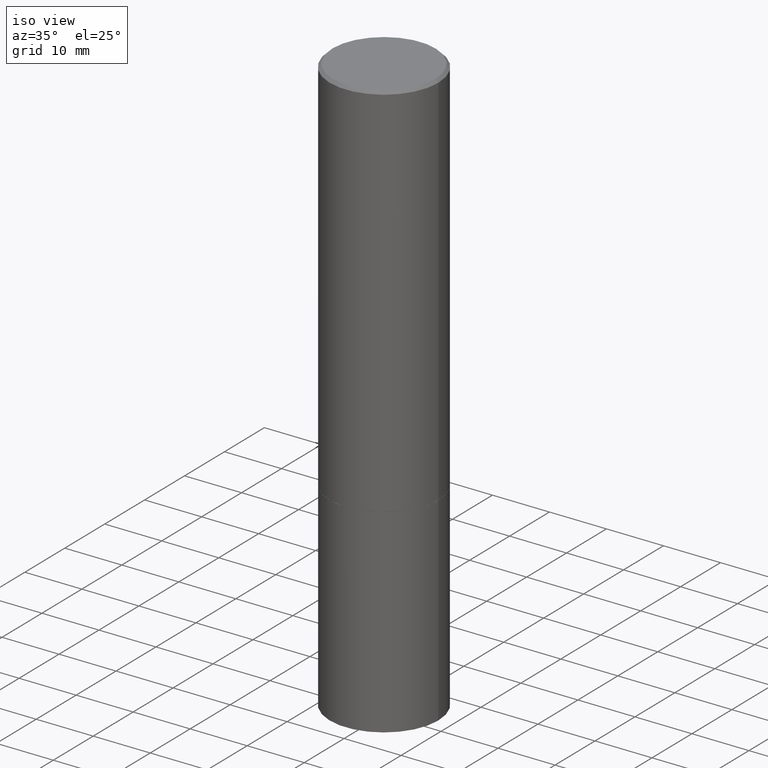
[diagram: clean part render]
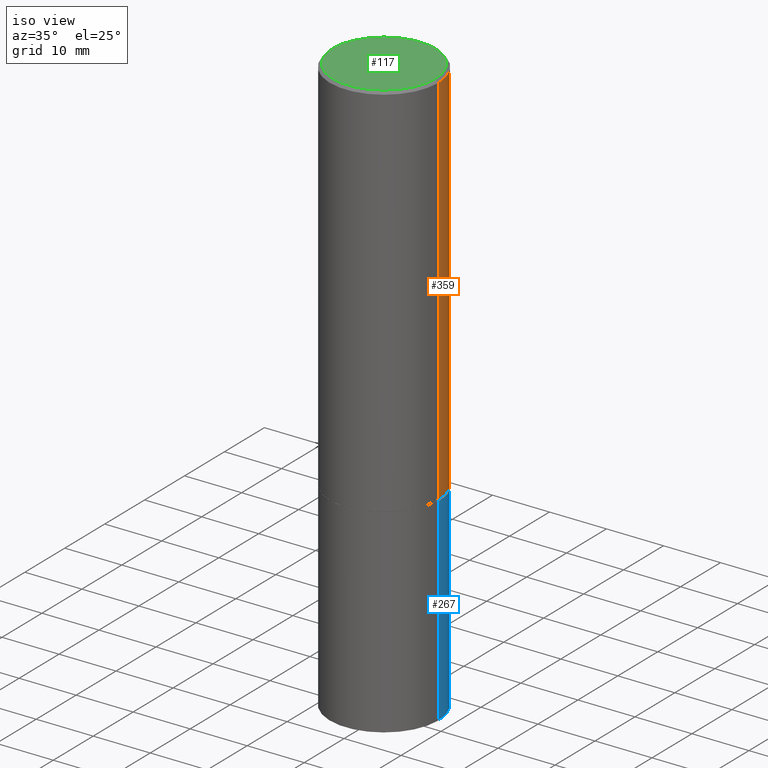
[diagram: same view with three faces highlighted in distinct colors, each labeled with its STEP entity id]
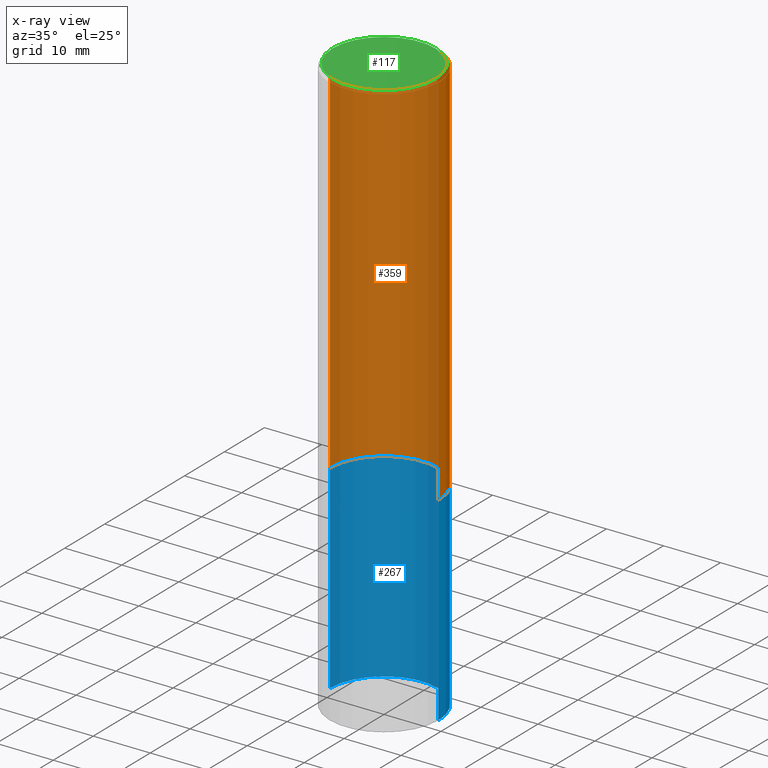
[diagram: x-ray of the same camera — body ghosted, the three highlighted faces saturated]
A machine part, iso view with three faces highlighted in distinct colors.
The next image is the same camera in x-ray (body ghosted, the three faces saturated) — at least one of them is partly hidden behind the body in this view.
Their STEP definitions:

[orange] entity #359 — the highlighted cylindrical surface (partial cylindrical patch) has radius 9.525 mm, axis along (-0, 0, 1).
#6 = CARTESIAN_POINT ( 'NONE',  ( 6.416910147429799085E-29, -9.161647033124413605E-15, -2.624000000000000110 ) ) ;
#13 = ORIENTED_EDGE ( 'NONE', *, *, #36, .T. ) ;
#18 = CARTESIAN_POINT ( 'NONE',  ( -0.3749999999999998335, 2.664535259100374514E-15, -1.844600658845588757E-29 ) ) ;
#24 = FACE_OUTER_BOUND ( 'NONE', #257, .T. ) ;
#29 = LINE ( 'NONE', #133, #301 ) ;
#36 = EDGE_CURVE ( 'NONE', #353, #83, #238, .T. ) ;
#41 = ORIENTED_EDGE ( 'NONE', *, *, #311, .F. ) ;
#45 = DIRECTION ( 'NONE',  ( -2.445468806185136877E-29, 3.491481338843145188E-15, 1.000000000000000000 ) ) ;
#48 = AXIS2_PLACEMENT_3D ( 'NONE', #6, #111, #231 ) ;
#83 = VERTEX_POINT ( 'NONE', #294 ) ;
#92 = CIRCLE ( 'NONE', #48, 0.3750000000000000555 ) ;
#107 = ORIENTED_EDGE ( 'NONE', *, *, #342, .T. ) ;
#111 = DIRECTION ( 'NONE',  ( -2.445468806185136597E-29, 3.491481338843145583E-15, 1.000000000000000000 ) ) ;
#129 = CARTESIAN_POINT ( 'NONE',  ( 4.890937612370294178E-31, -6.982962677686321191E-17, -0.02000000000000008715 ) ) ;
#131 = AXIS2_PLACEMENT_3D ( 'NONE', #129, #249, #184 ) ;
#133 = CARTESIAN_POINT ( 'NONE',  ( 0.3749999999999998335, -2.618611004132348439E-15, 1.828566290923475082E-29 ) ) ;
#175 = CARTESIAN_POINT ( 'NONE',  ( 0.3749999999999996114, -2.642516375941185268E-15, -0.02000000000000008715 ) ) ;
#184 = DIRECTION ( 'NONE',  ( 1.000000000000000000, -6.982962677686266711E-15, 0.000000000000000000 ) ) ;
#188 = DIRECTION ( 'NONE',  ( 1.000000000000000000, -6.982962677686265922E-15, 4.876176775795935793E-29 ) ) ;
#196 = ORIENTED_EDGE ( 'NONE', *, *, #365, .F. ) ;
#231 = DIRECTION ( 'NONE',  ( 1.000000000000000000, -6.982962677686266711E-15, 0.000000000000000000 ) ) ;
#238 = LINE ( 'NONE', #18, #330 ) ;
#244 = CYLINDRICAL_SURFACE ( 'NONE', #250, 0.3749999999999998335 ) ;
#249 = DIRECTION ( 'NONE',  ( -2.445468806185136597E-29, 3.491481338843145583E-15, 1.000000000000000000 ) ) ;
#250 = AXIS2_PLACEMENT_3D ( 'NONE', #364, #275, #188 ) ;
#256 = CIRCLE ( 'NONE', #131, 0.3749999999999996114 ) ;
#257 = EDGE_LOOP ( 'NONE', ( #107, #13, #196, #41 ) ) ;
#258 = DIRECTION ( 'NONE',  ( -2.445468806185136877E-29, 3.491481338843145188E-15, 1.000000000000000000 ) ) ;
#275 = DIRECTION ( 'NONE',  ( -2.445468806185136597E-29, 3.491481338843145583E-15, 1.000000000000000000 ) ) ;
#294 = CARTESIAN_POINT ( 'NONE',  ( -0.3749999999999996114, 2.548781377355483957E-15, -0.02000000000000008715 ) ) ;
#301 = VECTOR ( 'NONE', #258, 39.37007874015748143 ) ;
#311 = EDGE_CURVE ( 'NONE', #345, #349, #29, .T. ) ;
#317 = CARTESIAN_POINT ( 'NONE',  ( 0.3750000000000000555, -1.178025803725676520E-14, -2.624000000000000110 ) ) ;
#330 = VECTOR ( 'NONE', #45, 39.37007874015748143 ) ;
#339 = CARTESIAN_POINT ( 'NONE',  ( -0.3749999999999999445, -1.951203070850261571E-15, -2.624000000000000110 ) ) ;
#342 = EDGE_CURVE ( 'NONE', #345, #353, #92, .T. ) ;
#345 = VERTEX_POINT ( 'NONE', #317 ) ;
#349 = VERTEX_POINT ( 'NONE', #175 ) ;
#353 = VERTEX_POINT ( 'NONE', #339 ) ;
#359 = ADVANCED_FACE ( 'NONE', ( #24 ), #244, .T. ) ;
#364 = CARTESIAN_POINT ( 'NONE',  ( 0.000000000000000000, 0.000000000000000000, 0.000000000000000000 ) ) ;
#365 = EDGE_CURVE ( 'NONE', #349, #83, #256, .T. ) ;

[blue] entity #267 — the highlighted cylindrical surface (partial cylindrical patch) has radius 9.525 mm, axis along (-0, 0, 1).
#3 = EDGE_LOOP ( 'NONE', ( #66, #90, #326, #91 ) ) ;
#4 = VECTOR ( 'NONE', #7, 39.37007874015748143 ) ;
#7 = DIRECTION ( 'NONE',  ( -2.445468806185136877E-29, 3.491481338843145188E-15, 1.000000000000000000 ) ) ;
#32 = CARTESIAN_POINT ( 'NONE',  ( 0.3750000000000000555, -1.658453635950493392E-14, -4.000000000000000000 ) ) ;
#33 = CARTESIAN_POINT ( 'NONE',  ( -0.3750000000000000555, -8.900996675817542197E-15, -4.000000000000000000 ) ) ;
#35 = DIRECTION ( 'NONE',  ( -2.445468806185136597E-29, 3.491481338843145583E-15, 1.000000000000000000 ) ) ;
#52 = CARTESIAN_POINT ( 'NONE',  ( 9.781875224740546387E-29, -1.396592535537258233E-14, -4.000000000000000000 ) ) ;
#66 = ORIENTED_EDGE ( 'NONE', *, *, #357, .T. ) ;
#74 = AXIS2_PLACEMENT_3D ( 'NONE', #346, #35, #189 ) ;
#75 = LINE ( 'NONE', #362, #4 ) ;
#86 = VECTOR ( 'NONE', #199, 39.37007874015748143 ) ;
#90 = ORIENTED_EDGE ( 'NONE', *, *, #255, .T. ) ;
#91 = ORIENTED_EDGE ( 'NONE', *, *, #195, .F. ) ;
#118 = CIRCLE ( 'NONE', #166, 0.3750000000000000555 ) ;
#126 = CIRCLE ( 'NONE', #363, 0.3750000000000000555 ) ;
#152 = DIRECTION ( 'NONE',  ( -2.445468806185136597E-29, 3.491481338843145583E-15, 1.000000000000000000 ) ) ;
#157 = FACE_OUTER_BOUND ( 'NONE', #3, .T. ) ;
#164 = LINE ( 'NONE', #227, #86 ) ;
#166 = AXIS2_PLACEMENT_3D ( 'NONE', #324, #333, #309 ) ;
#169 = VERTEX_POINT ( 'NONE', #240 ) ;
#189 = DIRECTION ( 'NONE',  ( 1.000000000000000000, -6.982962677686265922E-15, 4.876176775795935793E-29 ) ) ;
#194 = VERTEX_POINT ( 'NONE', #229 ) ;
#195 = EDGE_CURVE ( 'NONE', #320, #169, #75, .T. ) ;
#199 = DIRECTION ( 'NONE',  ( -2.445468806185136877E-29, 3.491481338843145188E-15, 1.000000000000000000 ) ) ;
#213 = VERTEX_POINT ( 'NONE', #33 ) ;
#217 = EDGE_CURVE ( 'NONE', #169, #194, #118, .T. ) ;
#227 = CARTESIAN_POINT ( 'NONE',  ( -0.3750000000000000555, 2.664535259100376091E-15, -1.844600658845589598E-29 ) ) ;
#229 = CARTESIAN_POINT ( 'NONE',  ( -0.3750000000000000555, -8.900996675817542197E-15, -2.624999999999999556 ) ) ;
#240 = CARTESIAN_POINT ( 'NONE',  ( 0.3750000000000000555, -1.178374951859560505E-14, -2.624999999999999556 ) ) ;
#255 = EDGE_CURVE ( 'NONE', #213, #194, #164, .T. ) ;
#267 = ADVANCED_FACE ( 'NONE', ( #157 ), #283, .T. ) ;
#283 = CYLINDRICAL_SURFACE ( 'NONE', #74, 0.3750000000000000555 ) ;
#303 = DIRECTION ( 'NONE',  ( 1.000000000000000000, -6.982962677686266711E-15, 0.000000000000000000 ) ) ;
#309 = DIRECTION ( 'NONE',  ( 1.000000000000000000, -6.982962677686266711E-15, 0.000000000000000000 ) ) ;
#320 = VERTEX_POINT ( 'NONE', #32 ) ;
#324 = CARTESIAN_POINT ( 'NONE',  ( 6.419355616235982445E-29, -9.165138514463255034E-15, -2.624999999999999556 ) ) ;
#326 = ORIENTED_EDGE ( 'NONE', *, *, #217, .F. ) ;
#333 = DIRECTION ( 'NONE',  ( -2.445468806185136597E-29, 3.491481338843145583E-15, 1.000000000000000000 ) ) ;
#346 = CARTESIAN_POINT ( 'NONE',  ( 0.000000000000000000, 0.000000000000000000, 0.000000000000000000 ) ) ;
#357 = EDGE_CURVE ( 'NONE', #320, #213, #126, .T. ) ;
#362 = CARTESIAN_POINT ( 'NONE',  ( 0.3750000000000000555, -2.618611004132350016E-15, 1.828566290923476203E-29 ) ) ;
#363 = AXIS2_PLACEMENT_3D ( 'NONE', #52, #152, #303 ) ;

[green] entity #117 — the highlighted planar face has unit normal (0, -0, -1).
#44 = CARTESIAN_POINT ( 'NONE',  ( -0.3549999999999995381, 2.513866563967052703E-15, 1.280553747028377567E-17 ) ) ;
#51 = EDGE_CURVE ( 'NONE', #142, #351, #299, .T. ) ;
#55 = AXIS2_PLACEMENT_3D ( 'NONE', #361, #99, #153 ) ;
#76 = DIRECTION ( 'NONE',  ( -2.445468806185136597E-29, 3.491481338843145583E-15, 1.000000000000000000 ) ) ;
#96 = DIRECTION ( 'NONE',  ( 1.000000000000000000, -6.982962677686266711E-15, 4.876231632511994349E-29 ) ) ;
#98 = CARTESIAN_POINT ( 'NONE',  ( -3.131554243005659264E-46, 4.471029511141341874E-32, 1.280553747030123384E-17 ) ) ;
#99 = DIRECTION ( 'NONE',  ( 2.438088387897960049E-29, -3.491481338843145188E-15, -1.000000000000000000 ) ) ;
#117 = ADVANCED_FACE ( 'NONE', ( #268 ), #172, .F. ) ;
#125 = CIRCLE ( 'NONE', #154, 0.3549999999999995381 ) ;
#134 = ORIENTED_EDGE ( 'NONE', *, *, #51, .T. ) ;
#141 = ORIENTED_EDGE ( 'NONE', *, *, #186, .T. ) ;
#142 = VERTEX_POINT ( 'NONE', #174 ) ;
#153 = DIRECTION ( 'NONE',  ( -1.000000000000000000, 6.982962677686265922E-15, -4.876176775795935793E-29 ) ) ;
#154 = AXIS2_PLACEMENT_3D ( 'NONE', #98, #360, #338 ) ;
#172 = PLANE ( 'NONE',  #55 ) ;
#174 = CARTESIAN_POINT ( 'NONE',  ( 0.3549999999999995381, -2.538996582575037893E-15, 1.280553747031877983E-17 ) ) ;
#186 = EDGE_CURVE ( 'NONE', #351, #142, #125, .T. ) ;
#232 = EDGE_LOOP ( 'NONE', ( #141, #134 ) ) ;
#268 = FACE_OUTER_BOUND ( 'NONE', #232, .T. ) ;
#292 = AXIS2_PLACEMENT_3D ( 'NONE', #335, #76, #96 ) ;
#299 = CIRCLE ( 'NONE', #292, 0.3549999999999995381 ) ;
#335 = CARTESIAN_POINT ( 'NONE',  ( -3.131554243005659264E-46, 4.471029511141341874E-32, 1.280553747030123384E-17 ) ) ;
#338 = DIRECTION ( 'NONE',  ( 1.000000000000000000, -6.982962677686266711E-15, 4.876231632511994349E-29 ) ) ;
#351 = VERTEX_POINT ( 'NONE', #44 ) ;
#360 = DIRECTION ( 'NONE',  ( -2.445468806185136597E-29, 3.491481338843145583E-15, 1.000000000000000000 ) ) ;
#361 = CARTESIAN_POINT ( 'NONE',  ( 2.478951750578621448E-15, 0.3549999999999995381, -1.233073106554164423E-15 ) ) ;